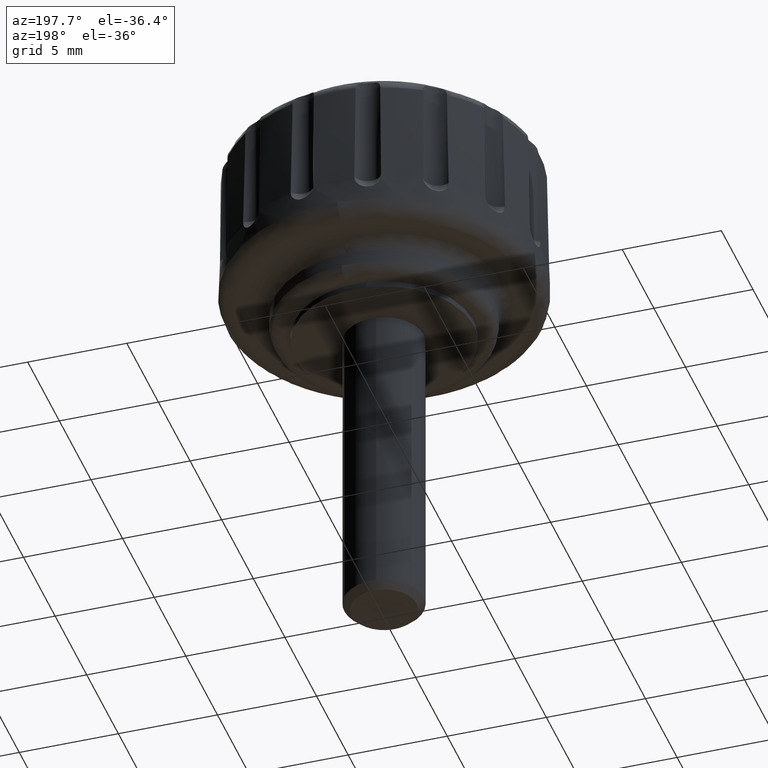
[diagram: clean part render]
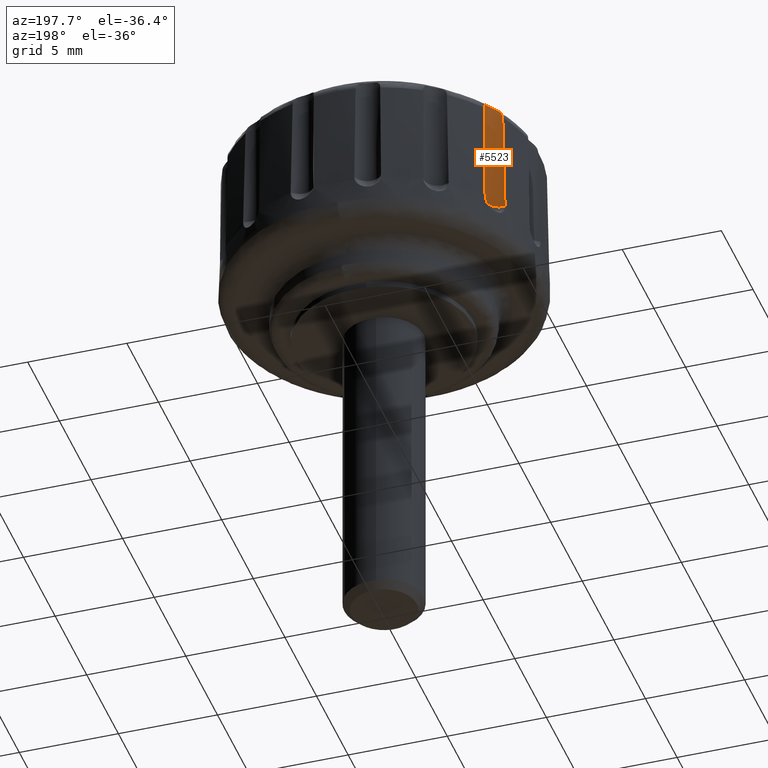
[diagram: same view with one face highlighted and labeled with its STEP entity id]
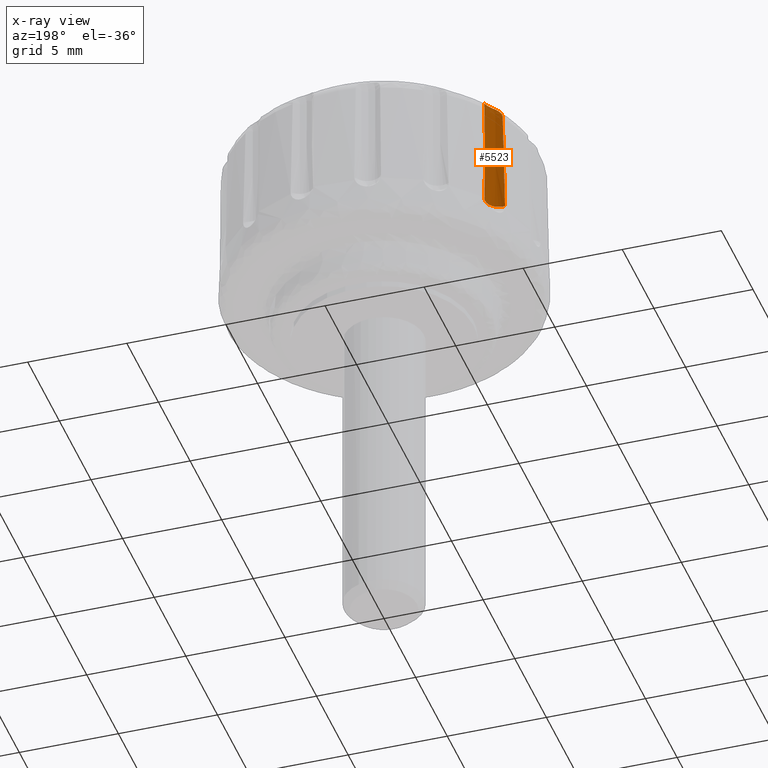
[diagram: x-ray of the same camera — body ghosted, the highlighted face saturated]
A machine part, auxiliary view. The second image highlights one B-rep face of the part: STEP entity #5523.
The next image is the same camera in x-ray: the body ghosted, the highlighted face saturated — about 0% of this face is hidden behind the body in this view.
In plain terms, the highlighted face is a freeform B-spline surface patch.
Its self-contained STEP definition (entity closure, byte-faithful):
#1918=CARTESIAN_POINT('',(-7.074129325331840,3.400530131395550,9.412215999999800));
#1919=VERTEX_POINT('',#1918);
#1933=CARTESIAN_POINT('',(-7.191506374337780,3.405821382242145,4.099997999999935));
#1934=VERTEX_POINT('',#1933);
#1935=CARTESIAN_POINT('',(-7.074129325331847,3.400530131395546,9.412215999999800));
#1936=CARTESIAN_POINT('',(-7.114915962977506,3.398939620389971,7.641511708373069));
#1937=CARTESIAN_POINT('',(-7.153904647757129,3.400940869261602,5.870766568932547));
#1938=CARTESIAN_POINT('',(-7.191506374337790,3.405821382242138,4.099997999999936));
#1939=QUASI_UNIFORM_CURVE('',3,(#1935,#1936,#1937,#1938),.UNSPECIFIED.,.F.,.U.);
#1940=EDGE_CURVE('',#1919,#1934,#1939,.T.);
#1942=CARTESIAN_POINT('',(-6.545281024942820,4.525116520533160,4.099997999999900));
#1943=VERTEX_POINT('',#1942);
#1991=CARTESIAN_POINT('',(-6.482009355609390,4.426109144575610,9.412215961043639));
#1992=VERTEX_POINT('',#1991);
#1993=CARTESIAN_POINT('',(-6.545281024942820,4.525116520533160,4.099997999999900));
#1994=CARTESIAN_POINT('',(-6.522253249378646,4.494992226035933,5.870766683381367));
#1995=CARTESIAN_POINT('',(-6.501025515818284,4.462227166447536,7.641511502886162));
#1996=CARTESIAN_POINT('',(-6.482009355609390,4.426109144575610,9.412215961043639));
#1997=QUASI_UNIFORM_CURVE('',3,(#1993,#1994,#1995,#1996),.UNSPECIFIED.,.F.,.U.);
#1998=EDGE_CURVE('',#1943,#1992,#1997,.T.);
#4176=CARTESIAN_POINT('',(-7.074129325331840,3.400530131395550,9.412215999999800));
#4177=CARTESIAN_POINT('',(-7.073168633678244,3.400567596520526,9.453916721253480));
#4178=CARTESIAN_POINT('',(-7.067385398674737,3.400746299837345,9.494704833202194));
#4179=CARTESIAN_POINT('',(-7.051610793588432,3.401752016504106,9.554537304504329));
#4180=CARTESIAN_POINT('',(-7.045107226623922,3.402223865921723,9.574370130042947));
#4181=CARTESIAN_POINT('',(-7.029801856755212,3.403628054576546,9.612978597844537));
#4182=CARTESIAN_POINT('',(-7.012323232759053,3.405481696668001,9.650304877469461));
#4183=CARTESIAN_POINT('',(-6.990634791158345,3.408713139905546,9.685104555301903));
#4184=CARTESIAN_POINT('',(-6.966849331761305,3.412946716131821,9.718618972083313));
#4185=CARTESIAN_POINT('',(-6.953797743540404,3.415593070211621,9.734840476893178));
#4186=CARTESIAN_POINT('',(-6.912587235078680,3.425354717563188,9.780307952086478));
#4187=CARTESIAN_POINT('',(-6.882288198798778,3.434272116348216,9.806634205302334));
#4188=CARTESIAN_POINT('',(-6.833701901141376,3.452978302143285,9.840784181276845));
#4189=CARTESIAN_POINT('',(-6.817012401085418,3.460108755472267,9.851233063807086));
#4190=CARTESIAN_POINT('',(-6.783758208241294,3.475948476253695,9.869956063568871));
#4191=CARTESIAN_POINT('',(-6.767076116853285,3.484699705965117,9.878316308489110));
#4192=CARTESIAN_POINT('',(-6.717165265524400,3.513622108494466,9.900804938109518));
#4193=CARTESIAN_POINT('',(-6.683927166968535,3.536670841933800,9.912352961847644));
#4194=CARTESIAN_POINT('',(-6.637464720844225,3.575437189720951,9.925297023523562));
#4195=CARTESIAN_POINT('',(-6.622442787214308,3.589104862471064,9.928922032146849));
#4196=CARTESIAN_POINT('',(-6.593413040252277,3.617959887105679,9.935010304568076));
#4197=CARTESIAN_POINT('',(-6.579340829026165,3.633229806950070,9.937480643029641));
#4198=CARTESIAN_POINT('',(-6.539456975059877,3.680575305520342,9.943259063981904));
#4199=CARTESIAN_POINT('',(-6.515827708759812,3.714247377961709,9.945032285502833));
#4200=CARTESIAN_POINT('',(-6.484847021737112,3.767912613291200,9.945030959725868));
#4201=CARTESIAN_POINT('',(-6.475223214325700,3.786431963770049,9.944568639866326));
#4202=CARTESIAN_POINT('',(-6.457769925274210,3.824024747902918,9.942689594053823));
#4203=CARTESIAN_POINT('',(-6.449948375575628,3.843052833517995,9.941280670589181));
#4204=CARTESIAN_POINT('',(-6.429104803466927,3.900787044755988,9.935527252520359));
#4205=CARTESIAN_POINT('',(-6.418688408247228,3.940144848360562,9.929709340950952));
#4206=CARTESIAN_POINT('',(-6.404761635848104,4.020353850867344,9.912306373263599));
#4207=CARTESIAN_POINT('',(-6.401510625817089,4.059933217791874,9.900942589624773));
#4208=CARTESIAN_POINT('',(-6.401357523297635,4.117226559505966,9.878686167111139));
#4209=CARTESIAN_POINT('',(-6.402089198244953,4.136016335859182,9.870383158481378));
#4210=CARTESIAN_POINT('',(-6.404962469365207,4.172852753930517,9.851677396572230));
#4211=CARTESIAN_POINT('',(-6.407124511044264,4.190951623911876,9.841215007211424));
#4212=CARTESIAN_POINT('',(-6.415133710742405,4.242221022848434,9.807305138358245));
#4213=CARTESIAN_POINT('',(-6.422522257439965,4.272979198448782,9.781088387611733));
#4214=CARTESIAN_POINT('',(-6.434694419957789,4.313767598294741,9.735578581192417));
#4215=CARTESIAN_POINT('',(-6.438923604022456,4.326414610576801,9.719397350403462));
#4216=CARTESIAN_POINT('',(-6.447159647012968,4.349215104440471,9.685906184650193));
#4217=CARTESIAN_POINT('',(-6.451198131125074,4.359476752690435,9.668483377353564));
#4218=CARTESIAN_POINT('',(-6.462651224017830,4.387032346478486,9.614196895074395));
#4219=CARTESIAN_POINT('',(-6.469387281619820,4.401104205388178,9.575021713290324));
#4220=CARTESIAN_POINT('',(-6.478777392020612,4.420070271571011,9.495266307989160));
#4221=CARTESIAN_POINT('',(-6.481560886099248,4.425257345199197,9.453969800863996));
#4222=CARTESIAN_POINT('',(-6.482009355609390,4.426109144575610,9.412215961043639));
#4223=B_SPLINE_CURVE_WITH_KNOTS('',3,(#4176,#4177,#4178,#4179,#4180,#4181,#4182,#4183,#4184,#4185,#4186,#4187,#4188,#4189,#4190,#4191,#4192,#4193,#4194,#4195,#4196,#4197,#4198,#4199,#4200,#4201,#4202,#4203,#4204,#4205,#4206,#4207,#4208,#4209,#4210,#4211,#4212,#4213,#4214,#4215,#4216,#4217,#4218,#4219,#4220,#4221,#4222),.UNSPECIFIED.,.F.,.U.,(4,2,2,1,2,2,2,2,2,2,2,2,2,2,2,2,2,2,2,2,2,2,2,4),(0.000000139648876,0.062500000000005,0.093750000000005,0.125000000000006,0.156250000000007,0.187500000000008,0.250000000000008,0.281250000000007,0.312500000000007,0.375000000000007,0.406250000000006,0.437500000000006,0.500000000000004,0.531250000000003,0.562500000000003,0.625000000000000,0.687499999999999,0.718749999999999,0.749999999999998,0.812499999999998,0.843749999999998,0.874999999999999,0.937500000000000,1.0),.UNSPECIFIED.);
#4224=EDGE_CURVE('',#1919,#1992,#4223,.T.);
#5083=CARTESIAN_POINT('',(-7.191506374337780,3.405821382242142,4.099997999999940));
#5084=CARTESIAN_POINT('',(-6.728588424596847,3.345736985378434,4.099997999999940));
#5085=CARTESIAN_POINT('',(-6.495187930307083,3.749998499999995,4.099997999999940));
#5086=CARTESIAN_POINT('',(-6.261787436017318,4.154260014621556,4.099997999999940));
#5087=CARTESIAN_POINT('',(-6.545281024942820,4.525116520533160,4.099997999999900));
#5095=(BOUNDED_CURVE()B_SPLINE_CURVE(2,(#5083,#5084,#5085,#5086,#5087),.UNSPECIFIED.,.F.,.U.)B_SPLINE_CURVE_WITH_KNOTS((3,2,3),(0.0,0.500000000000000,1.0),.UNSPECIFIED.)CURVE()GEOMETRIC_REPRESENTATION_ITEM()RATIONAL_B_SPLINE_CURVE((1.0,0.831976603905547,1.0,0.831976603905547,1.0))REPRESENTATION_ITEM(''));
#5096=EDGE_CURVE('',#1934,#1943,#5095,.T.);
#5499=CARTESIAN_POINT('',(-7.214128470709111,3.409134128444640,10.091157237030400));
#5500=CARTESIAN_POINT('',(-7.214128470709111,3.409134128444640,3.950219019074138));
#5501=CARTESIAN_POINT('',(-6.730380029865539,3.330204803738259,10.091157237030396));
#5502=CARTESIAN_POINT('',(-6.730380029865539,3.330204803738259,3.950219019074138));
#5503=CARTESIAN_POINT('',(-6.490759014804447,3.757784224966978,10.091157237030400));
#5504=CARTESIAN_POINT('',(-6.490759014804447,3.757784224966978,3.950219019074138));
#5505=CARTESIAN_POINT('',(-6.251137999743358,4.185363646195698,10.091157237030396));
#5506=CARTESIAN_POINT('',(-6.251137999743358,4.185363646195698,3.950219019074138));
#5507=CARTESIAN_POINT('',(-6.570976012756859,4.556774520765586,10.091157237030400));
#5508=CARTESIAN_POINT('',(-6.570976012756859,4.556774520765586,3.950219019074138));
#5516=(BOUNDED_SURFACE()B_SPLINE_SURFACE(1,2,((#5499,#5501,#5503,#5505,#5507),(#5500,#5502,#5504,#5506,#5508)),.UNSPECIFIED.,.F.,.F.,.U.)B_SPLINE_SURFACE_WITH_KNOTS((2,2),(3,2,3),(0.0,6.140938217956259),(0.0,1.0,2.0),.UNSPECIFIED.)GEOMETRIC_REPRESENTATION_ITEM()RATIONAL_B_SPLINE_SURFACE(((1.0,0.819152044288992,1.0,0.819152044288992,1.0),(1.0,0.819152044288992,1.0,0.819152044288992,1.0)))REPRESENTATION_ITEM('')SURFACE());
#5517=ORIENTED_EDGE('',*,*,#4224,.T.);
#5518=ORIENTED_EDGE('',*,*,#1998,.F.);
#5519=ORIENTED_EDGE('',*,*,#5096,.F.);
#5520=ORIENTED_EDGE('',*,*,#1940,.F.);
#5521=EDGE_LOOP('',(#5517,#5518,#5519,#5520));
#5522=FACE_OUTER_BOUND('',#5521,.T.);
#5523=ADVANCED_FACE('',(#5522),#5516,.F.);